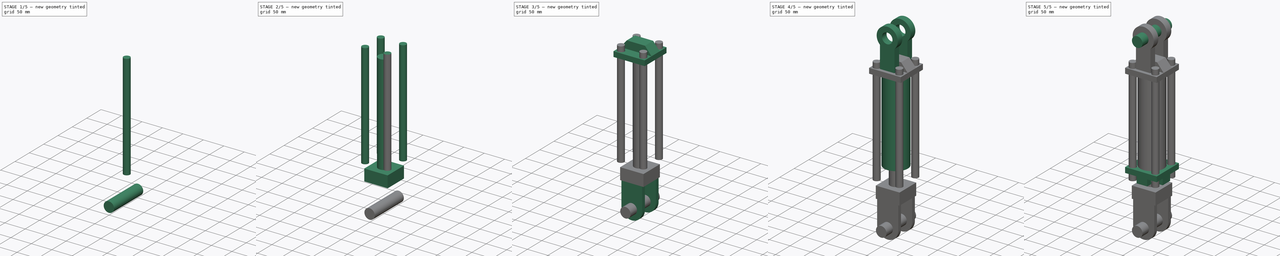
[diagram: build sequence overview — one tinted view per stage of 5, left to right]
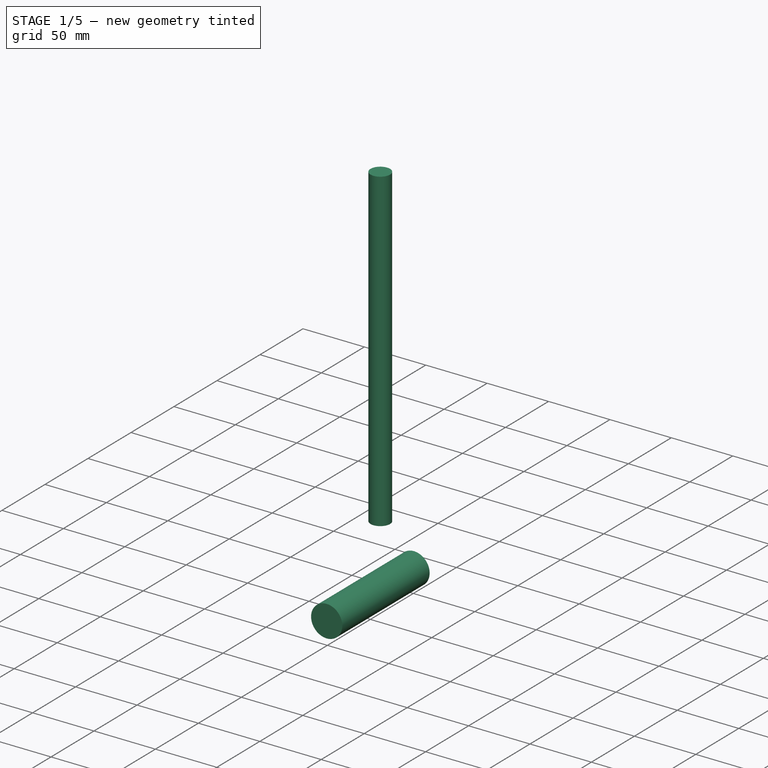
[diagram: stage 1 of 5 — iso view after this stage's code; geometry added in this stage tinted green]
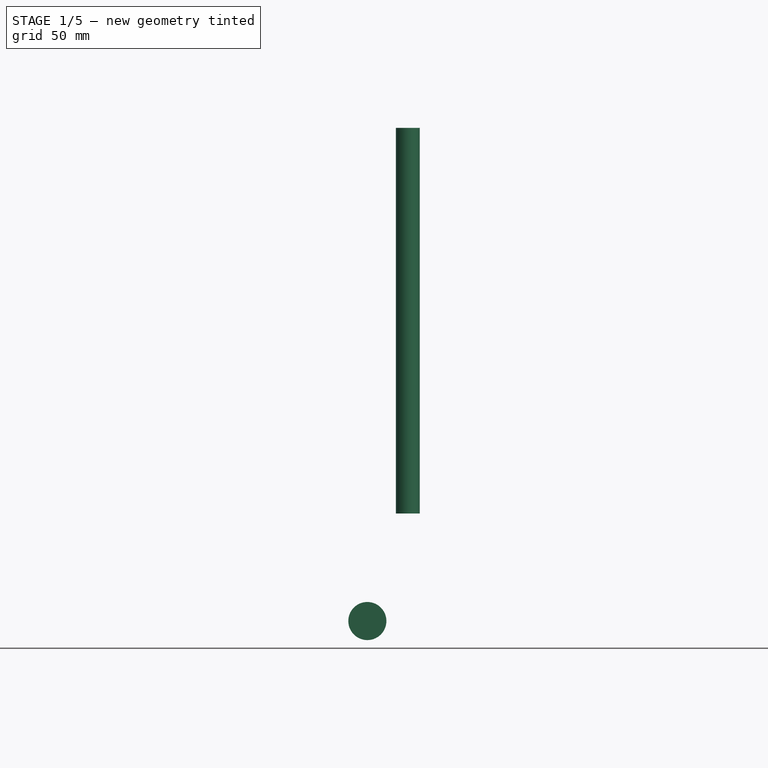
[diagram: stage 1 of 5 — front view after this stage's code; geometry added in this stage tinted green]
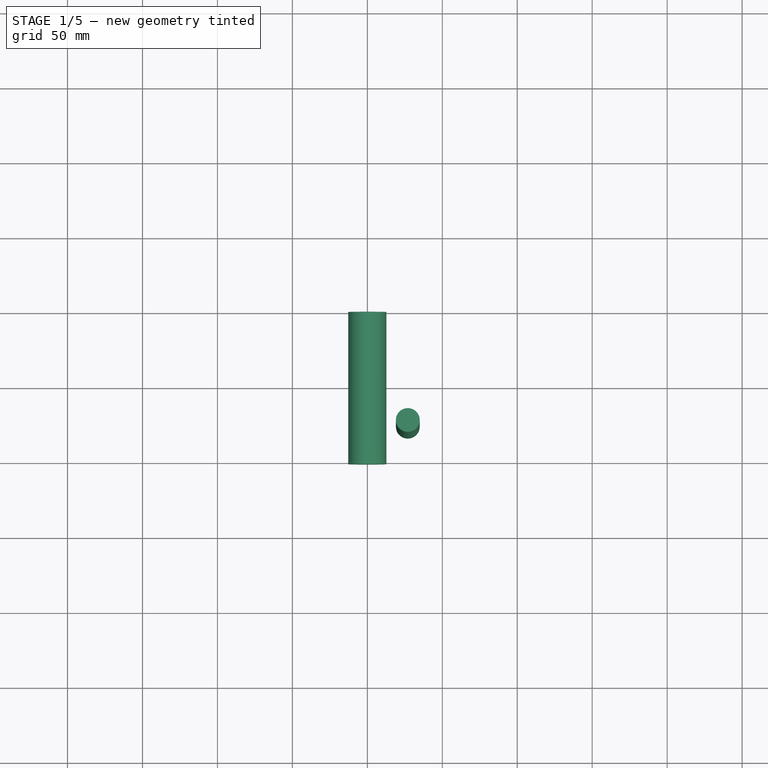
[diagram: stage 1 of 5 — top view after this stage's code; geometry added in this stage tinted green]
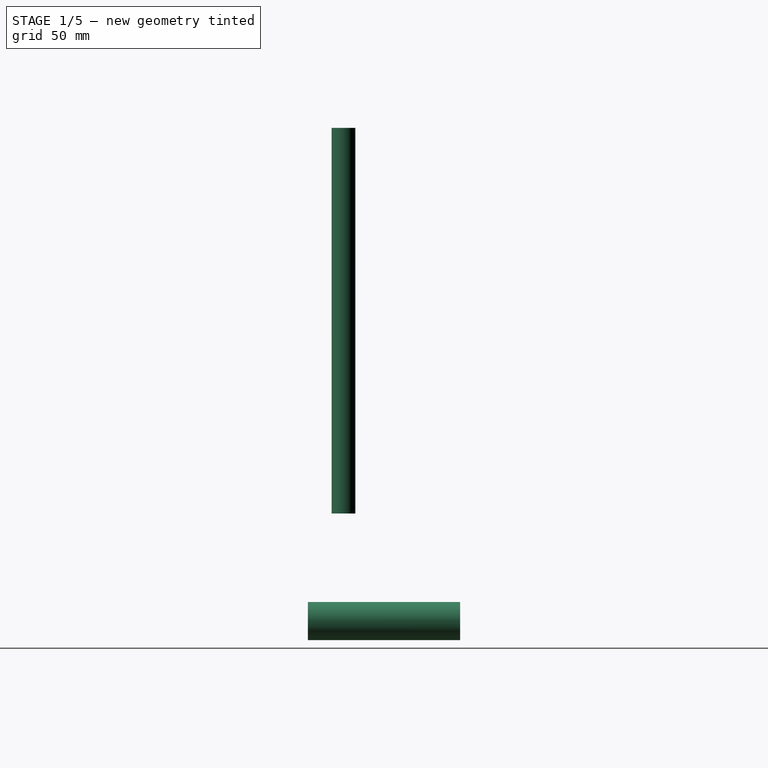
[diagram: stage 1 of 5 — right view after this stage's code; geometry added in this stage tinted green]
FCSTD DOCUMENT  (FreeCAD 0.17R13042 (Git))
Label: cylinder new retracted
License: CreativeCommons Attribution
LicenseURL: http://creativecommons.org/licenses/by/4.0/
objects: Sketcher::SketchObject×10, PartDesign::Pad×10, PartDesign::FeatureBase×8, PartDesign::Body×3, PartDesign::LinearPattern×2, Part::FeaturePython×2, Part::MultiFuse×2, Part::Cylinder×1
note: 48 computed .brp shape members not serialized (recipe doc carries the construction recipe); baked Part::Feature solids carry a one-line shape summary decoded from their .brp

FEATURE [PartDesign::Body] Body001
  Group = -> [Sketch006,Pad006,Sketch007,Pad007,Sketch008,Pad008,LinearPattern001]
  Origin = -> Origin001
  Tip = -> LinearPattern001
FEATURE [Sketcher::SketchObject] Sketch010
  MapMode = 5
  Support = -> [XY_Plane003]
  sketch-geometry (1):
    g0: Circle CenterX=26.9875 CenterY=-26.9875 CenterZ=0 NormalX=0 NormalY=0 NormalZ=1 AngleXU=0 Radius=7.9375
  constraints (3):
    c: Radius(g0) = 7.9375
    c: DistanceX(g0) = 26.9875
    c: DistanceY(g0) = -26.9875
FEATURE [PartDesign::Pad] Pad010
  Length = 257.175
  Length2 = 100.076
  Profile = -> Sketch010
  Reversed = true
  Type = 0
FEATURE [PartDesign::FeatureBase] BaseFeature
  BaseFeature = -> Pad010
FEATURE [PartDesign::FeatureBase] BaseFeature002  label="Unnamed002"
  BaseFeature = -> Pad010
FEATURE [PartDesign::FeatureBase] BaseFeature003  label="Unnamed003"
  BaseFeature = -> Pad010
FEATURE [PartDesign::FeatureBase] BaseFeature004  label="Unnamed004"
  BaseFeature = -> Pad010
FEATURE [Part::Cylinder] Cylinder
  Angle = 360
  AttacherType = Attacher::AttachEngine3D
  Height = 101.6
  Placement = pos=(0,50.8,83.82) rot=(1,0,0;1.5708rad)
  Radius = 12.7
FEATURE [PartDesign::FeatureBase] BaseFeature005  label="Unnamed005"
  BaseFeature = -> Pad010
FEATURE [PartDesign::FeatureBase] BaseFeature006  label="Unnamed006"
  BaseFeature = -> Pad010
FEATURE [PartDesign::FeatureBase] BaseFeature007  label="Unnamed"
  BaseFeature = -> Pad010
FEATURE [Part::FeaturePython] Clone  label="Cylinder001"  # Draft clone (typed FeaturePython)
  AttacherType = Attacher::AttachEngine3D
  Fuse = false
  Objects = -> [Cylinder]
  Placement = pos=(0,50.8,-328.93) rot=(1,0,0;1.5708rad)
  Scale = (1,1,1)
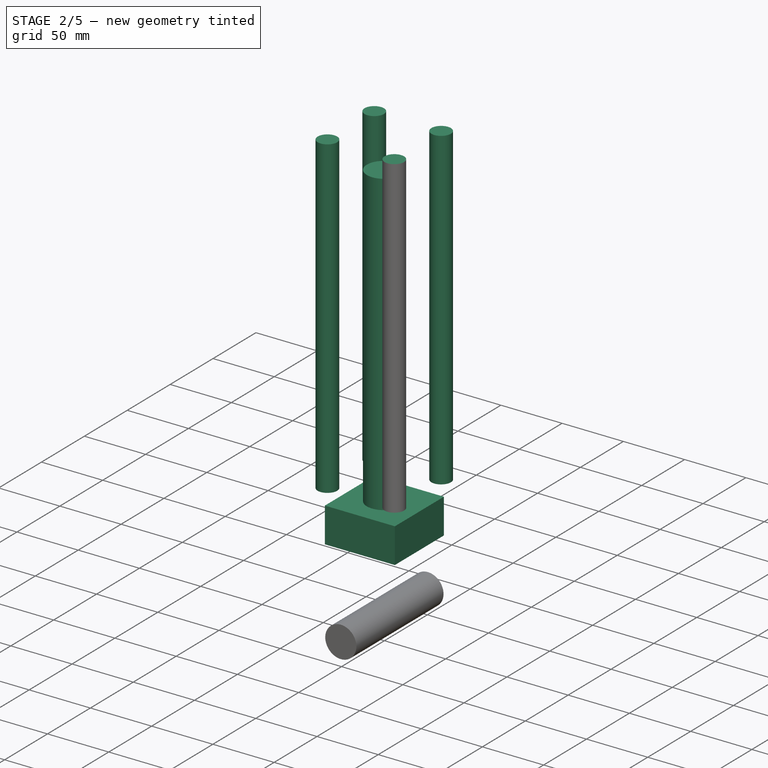
[diagram: stage 2 of 5 — iso view after this stage's code; geometry added in this stage tinted green]
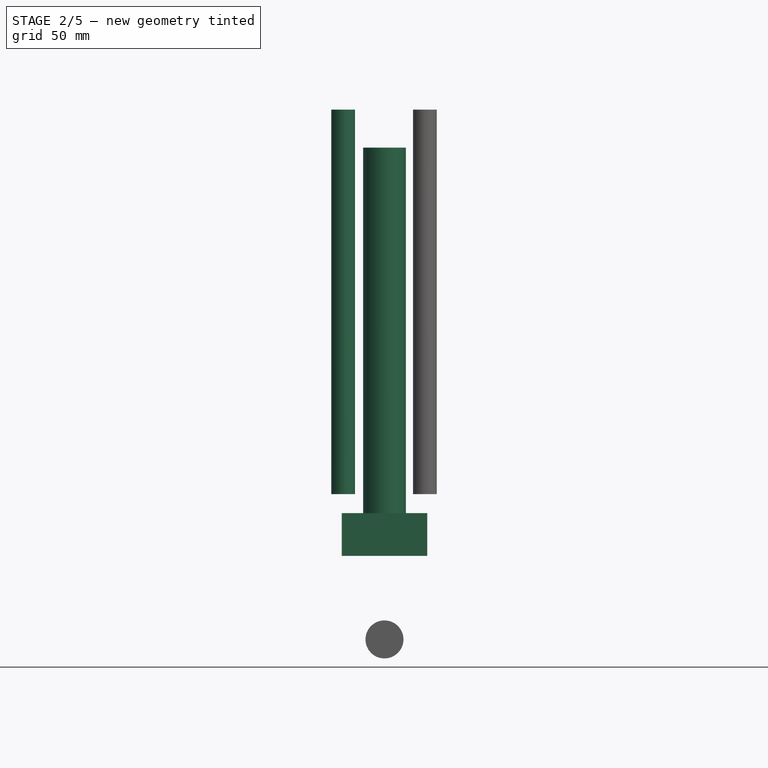
[diagram: stage 2 of 5 — front view after this stage's code; geometry added in this stage tinted green]
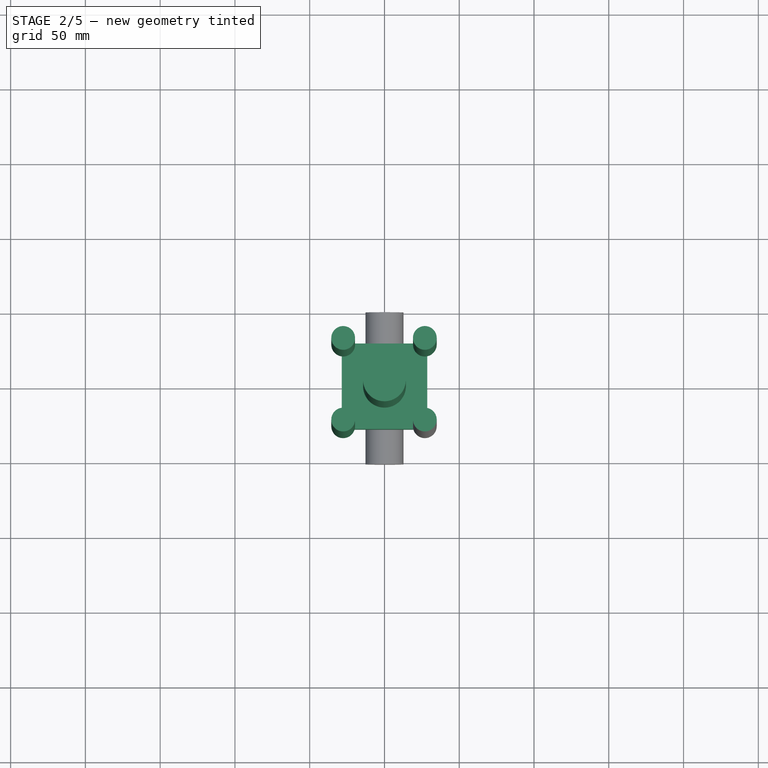
[diagram: stage 2 of 5 — top view after this stage's code; geometry added in this stage tinted green]
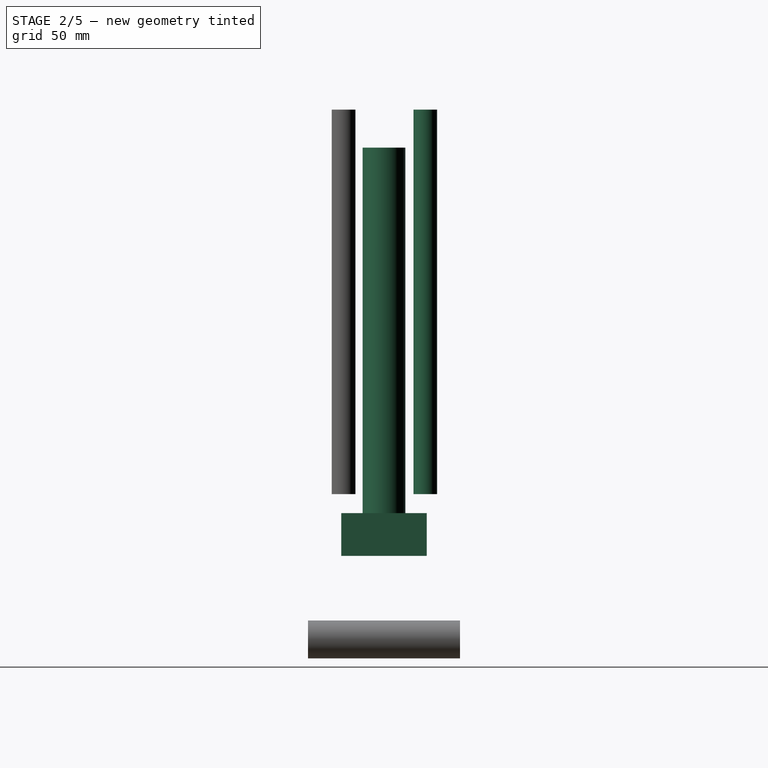
[diagram: stage 2 of 5 — right view after this stage's code; geometry added in this stage tinted green]
FEATURE [PartDesign::Body] Body
  Group = -> [Sketch,Pad,Sketch001,Pad001,Sketch002,Pad002,LinearPattern,Sketch003,Pad003,Sketch004,Pad004,Sketch005,Pad005]
  Origin = -> Origin
  Tip = -> Pad005
FEATURE [Sketcher::SketchObject] Sketch006
  MapMode = 5
  Support = -> [XY_Plane001]
  sketch-geometry (1):
    g0: Circle CenterX=0 CenterY=0 CenterZ=0 NormalX=0 NormalY=0 NormalZ=1 AngleXU=0 Radius=14.2875
  constraints (2):
    c: Coincident(g-1,g0)
    c: Radius(g0) = 14.2875
FEATURE [PartDesign::Pad] Pad006
  Length = 273.05
  Length2 = 100.076
  Profile = -> Sketch006
  Reversed = true
  Type = 0
FEATURE [Sketcher::SketchObject] Sketch007
  MapMode = 5
  Placement = pos=(0,0,-273.05) rot=(1,0,0;3.14159rad)
  Support = -> [Pad006]
  sketch-geometry (4):
    g0: LineSegment StartX=-28.575 StartY=28.575 StartZ=0 EndX=28.575 EndY=28.575 EndZ=0
    g1: LineSegment StartX=28.575 StartY=28.575 StartZ=0 EndX=28.575 EndY=-28.575 EndZ=0
    g2: LineSegment StartX=28.575 StartY=-28.575 StartZ=0 EndX=-28.575 EndY=-28.575 EndZ=0
    g3: LineSegment StartX=-28.575 StartY=-28.575 StartZ=0 EndX=-28.575 EndY=28.575 EndZ=0
  constraints (12):
    c: Coincident(g0,g1)
    c: Coincident(g1,g2)
    c: Coincident(g2,g3)
    c: Coincident(g3,g0)
    c: Horizontal(g0)
    c: Horizontal(g2)
    c: Vertical(g1)
    c: Vertical(g3)
    c: Symmetric(g1,g0,g-1)
    c: Symmetric(g2,g1,g-2)
    c: Equal(g2,g1)
    c: DistanceX(g2,g2) = 57.15
FEATURE [PartDesign::Pad] Pad007
  BaseFeature = -> Pad006
  Length = 28.575
  Length2 = 100.076
  Profile = -> Sketch007
  Reversed = true
  Type = 0
FEATURE [PartDesign::Body] Body002
  BaseFeature = -> Pad010
  Group = -> [BaseFeature]
  Origin = -> Origin002
  Tip = -> BaseFeature
FEATURE [Part::FeaturePython] Array  # Draft array (typed FeaturePython)
  Angle = 360
  ArrayType = 0
  Axis = (0,0,1)
  Base = -> Body002
  Center = (0,0,0)
  Fuse = false
  IntervalAxis = (0,0,0)
  IntervalX = (-54.61,0,0)
  IntervalY = (0,54.61,0)
  IntervalZ = (0,0,0)
  NumberPolar = 1
  NumberX = 2
  NumberY = 2
  NumberZ = 1
  Placement = pos=(0,0,25.4) rot=(0,0,1;0rad)
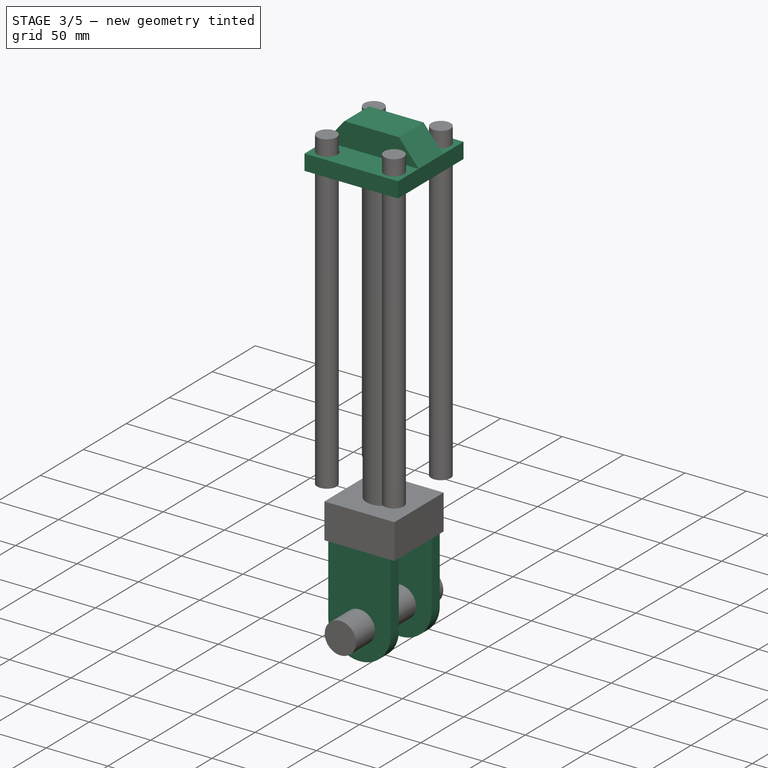
[diagram: stage 3 of 5 — iso view after this stage's code; geometry added in this stage tinted green]
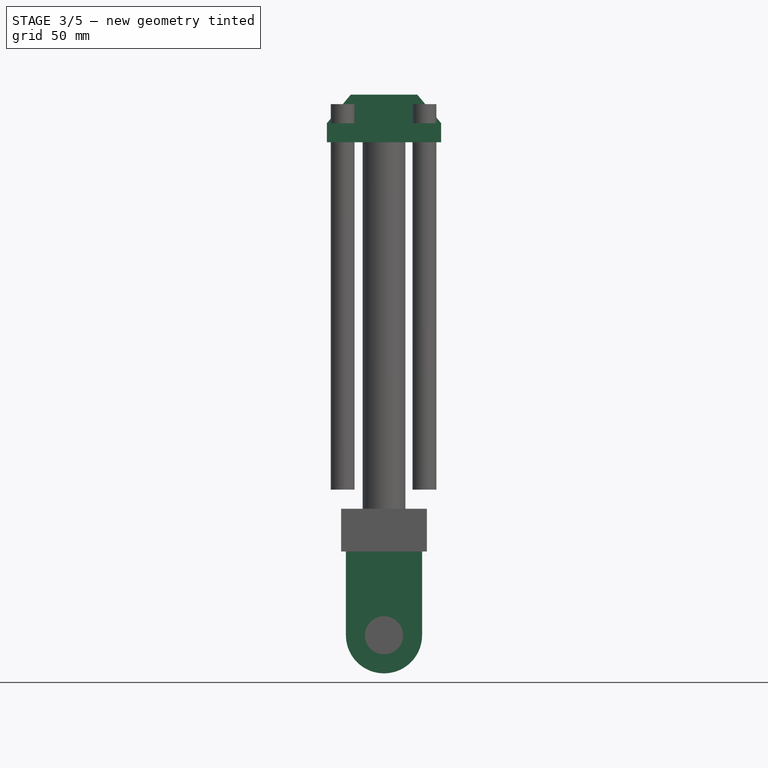
[diagram: stage 3 of 5 — front view after this stage's code; geometry added in this stage tinted green]
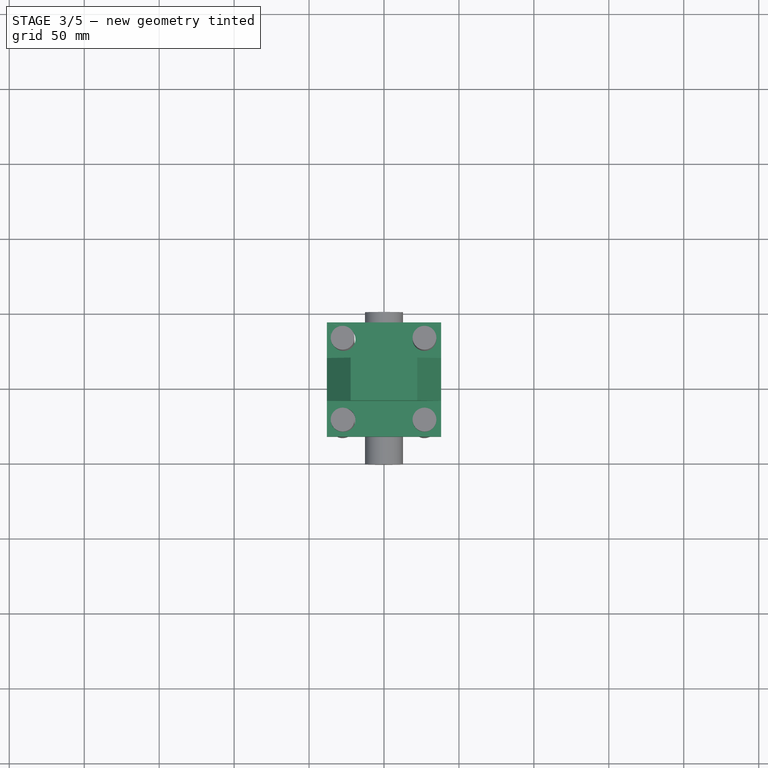
[diagram: stage 3 of 5 — top view after this stage's code; geometry added in this stage tinted green]
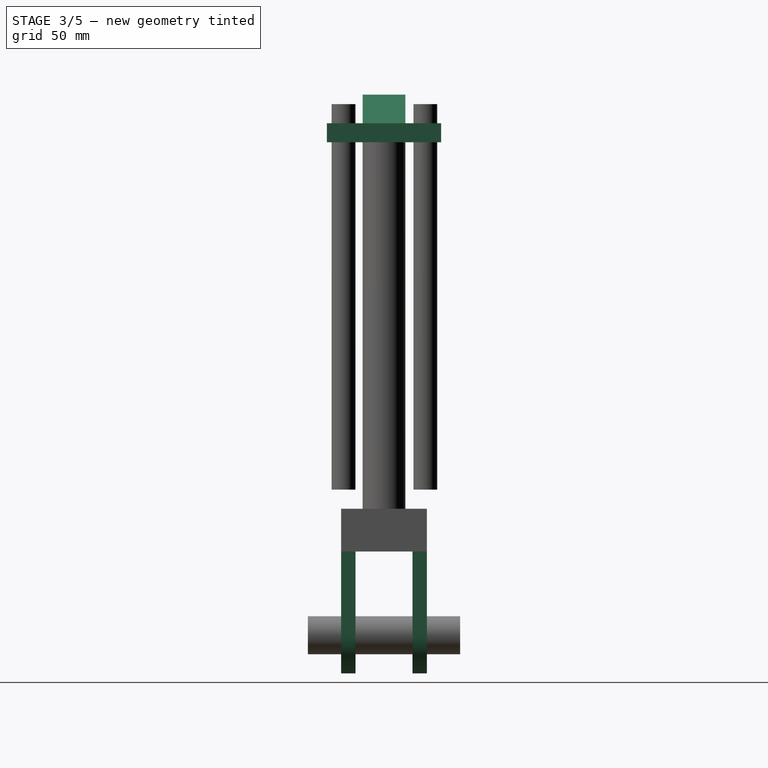
[diagram: stage 3 of 5 — right view after this stage's code; geometry added in this stage tinted green]
FEATURE [Sketcher::SketchObject] Sketch
  MapMode = 5
  Support = -> [XY_Plane]
  sketch-geometry (12):
    g0: LineSegment StartX=-38.1 StartY=38.1 StartZ=0 EndX=38.1 EndY=38.1 EndZ=0
    g1: LineSegment StartX=38.1 StartY=38.1 StartZ=0 EndX=38.1 EndY=-38.1 EndZ=0
    g2: LineSegment StartX=38.1 StartY=-38.1 StartZ=0 EndX=-38.1 EndY=-38.1 EndZ=0
    g3: LineSegment StartX=-38.1 StartY=-38.1 StartZ=0 EndX=-38.1 EndY=38.1 EndZ=0
    g4: LineSegment [constr] StartX=-26.9875 StartY=26.9875 StartZ=0 EndX=26.9875 EndY=26.9875 EndZ=0
    g5: LineSegment [constr] StartX=26.9875 StartY=26.9875 StartZ=0 EndX=26.9875 EndY=-26.9875 EndZ=0
    g6: LineSegment [constr] StartX=26.9875 StartY=-26.9875 StartZ=0 EndX=-26.9875 EndY=-26.9875 EndZ=0
    g7: LineSegment [constr] StartX=-26.9875 StartY=-26.9875 StartZ=0 EndX=-26.9875 EndY=26.9875 EndZ=0
    g8: Circle CenterX=-26.9875 CenterY=26.9875 CenterZ=0 NormalX=0 NormalY=0 NormalZ=1 AngleXU=0 Radius=7.9375
    g9: Circle CenterX=26.9875 CenterY=26.9875 CenterZ=0 NormalX=0 NormalY=0 NormalZ=1 AngleXU=0 Radius=7.9375
    g10: Circle CenterX=-26.9875 CenterY=-26.9875 CenterZ=0 NormalX=0 NormalY=0 NormalZ=1 AngleXU=0 Radius=7.9375
    g11: Circle CenterX=26.9875 CenterY=-26.9875 CenterZ=0 NormalX=0 NormalY=0 NormalZ=1 AngleXU=0 Radius=7.9375
  constraints (32):
    c: Coincident(g0,g1)
    c: Coincident(g1,g2)
    c: Coincident(g2,g3)
    c: Coincident(g3,g0)
    c: Horizontal(g0)
    c: Horizontal(g2)
    c: Vertical(g1)
    c: Vertical(g3)
    c: Equal(g2,g1)
    c: Symmetric(g1,g2,g-2)
    c: DistanceX(g2,g2) = 76.2
    c: Symmetric(g0,g1,g-1)
    c: Coincident(g4,g5)
    c: Coincident(g5,g6)
    c: Coincident(g6,g7)
    c: Coincident(g7,g4)
    c: Horizontal(g4)
    c: Horizontal(g6)
    c: Vertical(g5)
    c: Vertical(g7)
    c: Symmetric(g5,g4,g-1)
    c: Symmetric(g5,g6,g-2)
    c: DistanceX(g6,g6) = 53.975
    c: Equal(g6,g5)
    c: Coincident(g8,g4)
    c: Coincident(g9,g4)
    c: Coincident(g10,g6)
    c: Coincident(g11,g5)
    c: Radius(g11) = 7.9375
    c: Equal(g11,g9)
    c: Equal(g11,g8)
    c: Equal(g11,g10)
FEATURE [Sketcher::SketchObject] Sketch001
  MapMode = 3
  Placement = pos=(0,0,12.7) rot=(1,0,0;1.5708rad)
  sketch-geometry (4):
    g0: LineSegment StartX=-38.1 StartY=0 StartZ=0 EndX=38.1 EndY=0 EndZ=0
    g1: LineSegment StartX=38.1 StartY=0 StartZ=0 EndX=22.225 EndY=19.05 EndZ=0
    g2: LineSegment StartX=22.225 StartY=19.05 StartZ=0 EndX=-22.225 EndY=19.05 EndZ=0
    g3: LineSegment StartX=-22.225 StartY=19.05 StartZ=0 EndX=-38.1 EndY=0 EndZ=0
  constraints (12):
    c: PointOnObject(g0,g-1)
    c: Horizontal(g0)
    c: Coincident(g0,g1)
    c: Coincident(g1,g2)
    c: Coincident(g2,g3)
    c: Coincident(g3,g0)
    c: Horizontal(g2)
    c: Symmetric(g2,g1,g-2)
    c: Symmetric(g0,g0,g-2)
    c: DistanceY(g0,g2) = 19.05
    c: DistanceX(g2,g2) = 44.45
    c: DistanceX(g0,g0) = 76.2
FEATURE [PartDesign::Pad] Pad
  Length = 12.7
  Length2 = 100.076
  Profile = -> Sketch
  Type = 0
FEATURE [PartDesign::Pad] Pad001
  BaseFeature = -> Pad
  Length = 28.575
  Length2 = 100.076
  Midplane = true
  Profile = -> Sketch001
  Type = 0
FEATURE [Sketcher::SketchObject] Sketch008
  MapMode = 5
  Placement = pos=(0,-28.575,0) rot=(1,0,0;1.5708rad)
  Support = -> [Pad007]
  sketch-geometry (5):
    g0: LineSegment StartX=-25.4 StartY=-247.65 StartZ=0 EndX=25.4 EndY=-247.65 EndZ=0
    g1: LineSegment StartX=25.4 StartY=-247.65 StartZ=0 EndX=25.4 EndY=-328.93 EndZ=0
    g2: LineSegment StartX=-25.4 StartY=-328.93 StartZ=0 EndX=-25.4 EndY=-247.65 EndZ=0
    g3: Circle CenterX=0 CenterY=-328.93 CenterZ=0 NormalX=0 NormalY=0 NormalZ=1 AngleXU=0 Radius=12.7
    g4: ArcOfCircle CenterX=0 CenterY=-328.93 CenterZ=0 NormalX=0 NormalY=0 NormalZ=1 AngleXU=0 Radius=25.4 StartAngle=3.14159 EndAngle=6.28319
  constraints (15):
    c: Coincident(g0,g1)
    c: Coincident(g2,g0)
    c: Horizontal(g0)
    c: Vertical(g1)
    c: Vertical(g2)
    c: PointOnObject(g3,g-2)
    c: Radius(g3) = 12.7
    c: Coincident(g4,g3)
    c: Radius(g4) = 25.4
    c: Symmetric(g0,g0,g-2)
    c: DistanceY(g3,g0) = 81.28
    c: Coincident(g4,g2)
    c: Coincident(g4,g1)
    c: DistanceX(g0,g0) = 50.8
    c: DistanceY(g0,g-1) = 247.65
FEATURE [PartDesign::Pad] Pad008
  BaseFeature = -> Pad007
  Length = 9.525
  Length2 = 100.076
  Profile = -> Sketch008
  Reversed = true
  Type = 0
FEATURE [PartDesign::LinearPattern] LinearPattern001
  Direction = -> Sketch008 [N_Axis]
  Length = 47.625
  Occurrences = 2
  Originals = -> [Pad008]
  Reversed = true
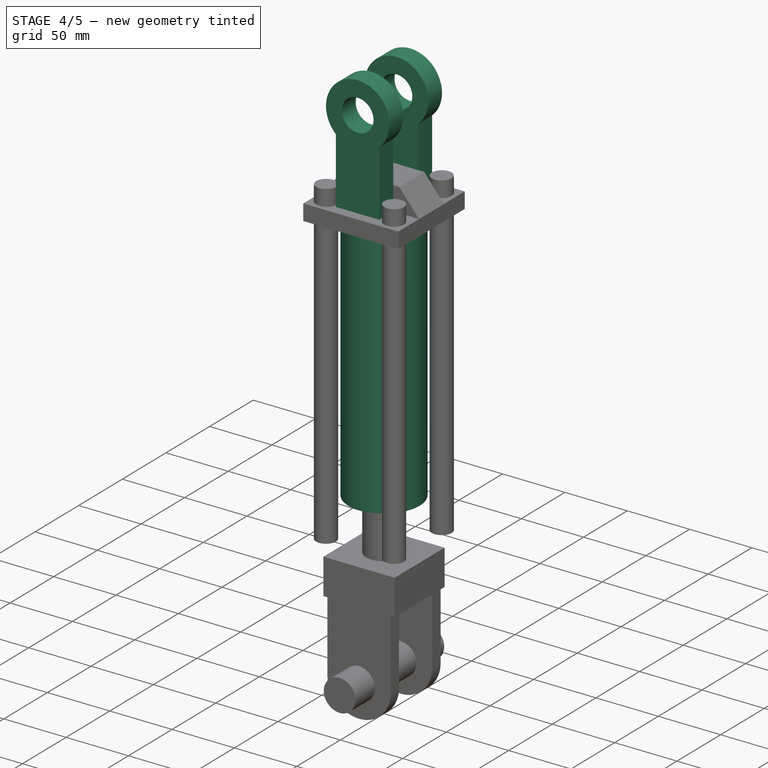
[diagram: stage 4 of 5 — iso view after this stage's code; geometry added in this stage tinted green]
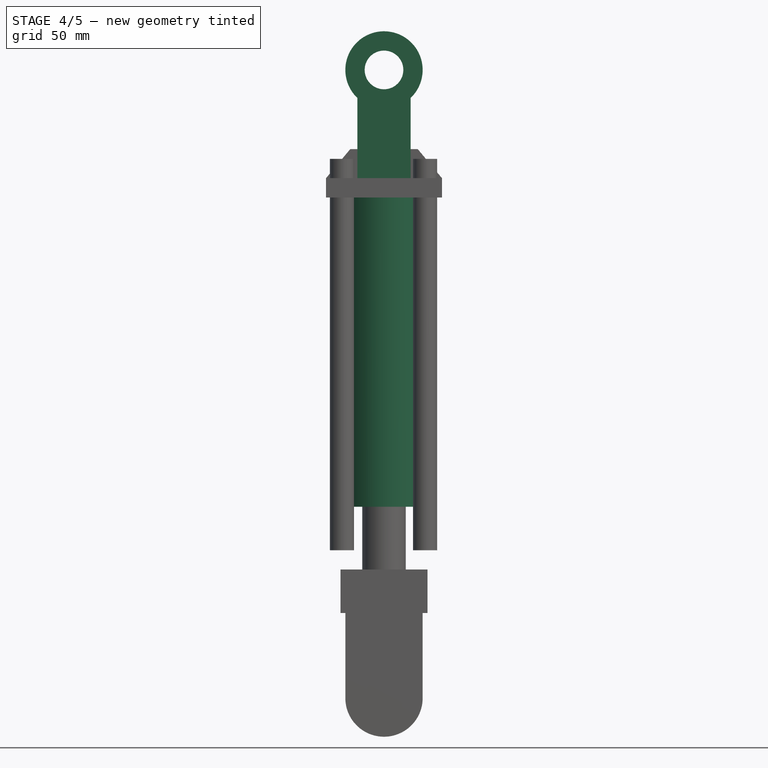
[diagram: stage 4 of 5 — front view after this stage's code; geometry added in this stage tinted green]
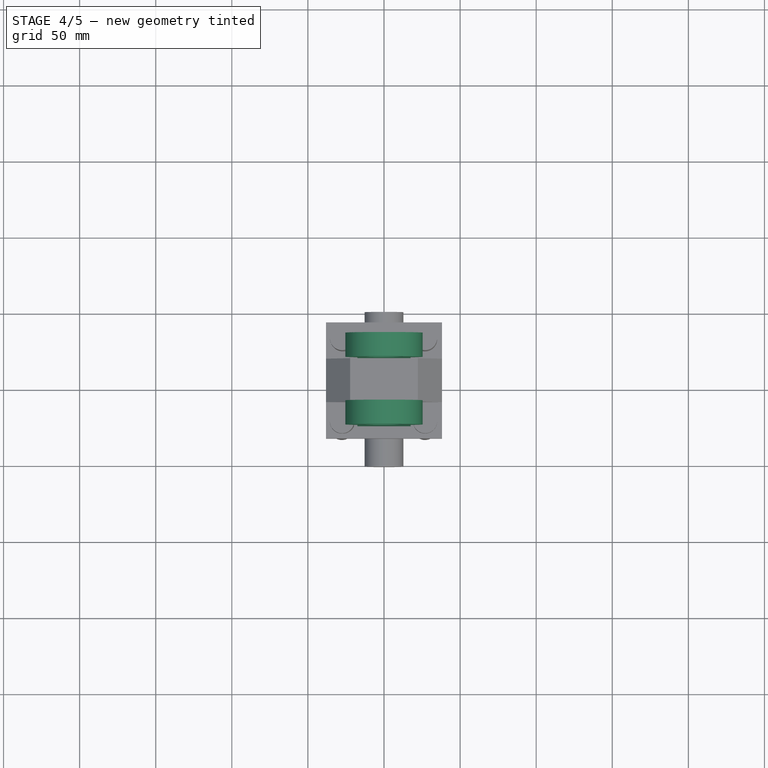
[diagram: stage 4 of 5 — top view after this stage's code; geometry added in this stage tinted green]
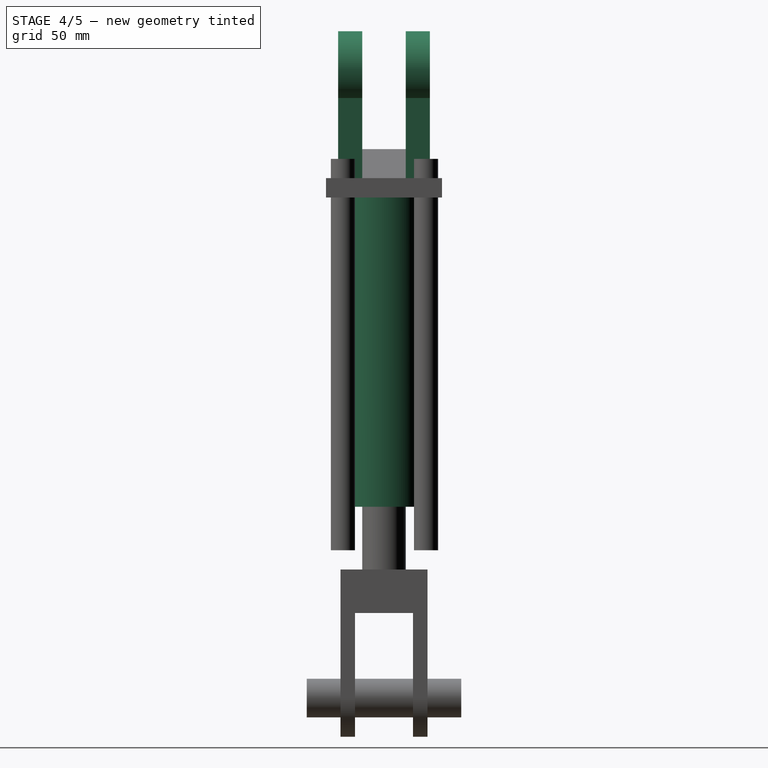
[diagram: stage 4 of 5 — right view after this stage's code; geometry added in this stage tinted green]
FEATURE [Sketcher::SketchObject] Sketch002
  MapMode = 5
  Placement = pos=(0,-14.2875,0) rot=(1,0,0;1.5708rad)
  Support = -> [Pad001]
  sketch-geometry (5):
    g0: LineSegment StartX=-17.4625 StartY=0 StartZ=0 EndX=17.4625 EndY=0 EndZ=0
    g1: LineSegment StartX=17.4625 StartY=0 StartZ=0 EndX=17.4625 EndY=65.3749 EndZ=0
    g2: LineSegment StartX=-17.4625 StartY=65.3749 StartZ=0 EndX=-17.4625 EndY=0 EndZ=0
    g3: Circle CenterX=0 CenterY=83.82 CenterZ=0 NormalX=0 NormalY=0 NormalZ=1 AngleXU=0 Radius=12.7
    g4: ArcOfCircle CenterX=0 CenterY=83.82 CenterZ=0 NormalX=0 NormalY=0 NormalZ=1 AngleXU=0 Radius=25.4 StartAngle=5.47043 EndAngle=10.2375
  constraints (15):
    c: PointOnObject(g0,g-1)
    c: Horizontal(g0)
    c: Coincident(g0,g1)
    c: Vertical(g1)
    c: Coincident(g2,g0)
    c: Vertical(g2)
    c: PointOnObject(g4,g-2)
    c: DistanceX(g0,g0) = 34.925
    c: Symmetric(g0,g0,g-2)
    c: Radius(g3) = 12.7
    c: Radius(g4) = 25.4
    c: Coincident(g2,g4)
    c: Coincident(g1,g4)
    c: Coincident(g3,g4)
    c: DistanceY(g-1,g3) = 83.82
FEATURE [PartDesign::Pad] Pad002
  BaseFeature = -> Pad001
  Length = 15.875
  Length2 = 100.076
  Profile = -> Sketch002
  Type = 0
FEATURE [PartDesign::LinearPattern] LinearPattern
  Direction = -> Sketch002 [N_Axis]
  Length = 44.45
  Occurrences = 2
  Originals = -> [Pad002]
  Reversed = true
FEATURE [Sketcher::SketchObject] Sketch003
  MapMode = 5
  Placement = pos=(0,0,0) rot=(1,0,0;3.14159rad)
  Support = -> [LinearPattern]
  sketch-geometry (2):
    g0: Circle CenterX=0 CenterY=0 CenterZ=0 NormalX=0 NormalY=0 NormalZ=1 AngleXU=0 Radius=28.575
    g1: Circle CenterX=0 CenterY=0 CenterZ=0 NormalX=0 NormalY=0 NormalZ=1 AngleXU=0 Radius=25.4
  constraints (4):
    c: Coincident(g0,g-1)
    c: Radius(g0) = 28.575
    c: Coincident(g1,g-1)
    c: Radius(g1) = 25.4
FEATURE [PartDesign::Pad] Pad003
  BaseFeature = -> LinearPattern
  Length = 203.2
  Length2 = 100.076
  Profile = -> Sketch003
  Type = 0
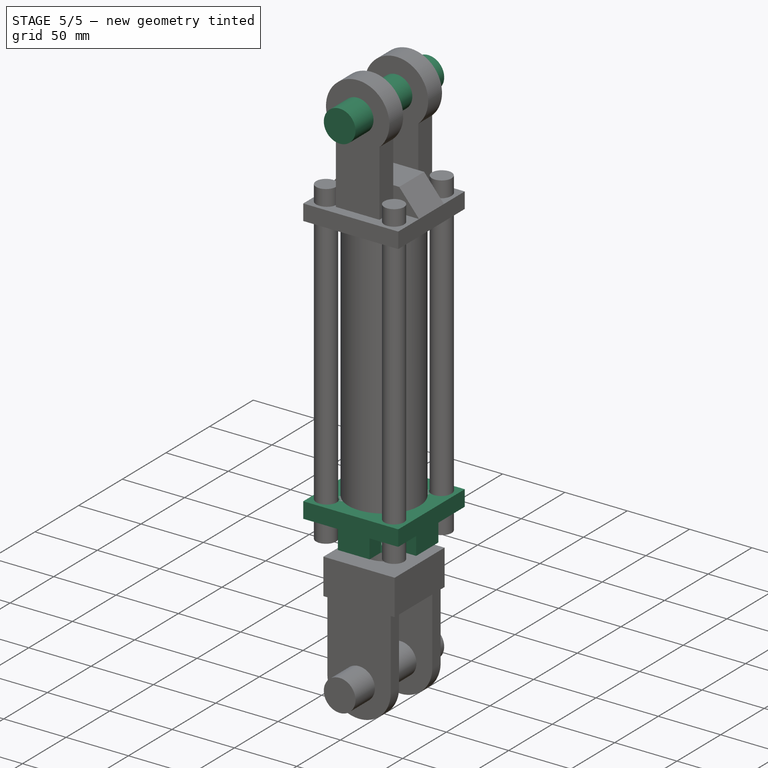
[diagram: stage 5 of 5 — iso view after this stage's code; geometry added in this stage tinted green]
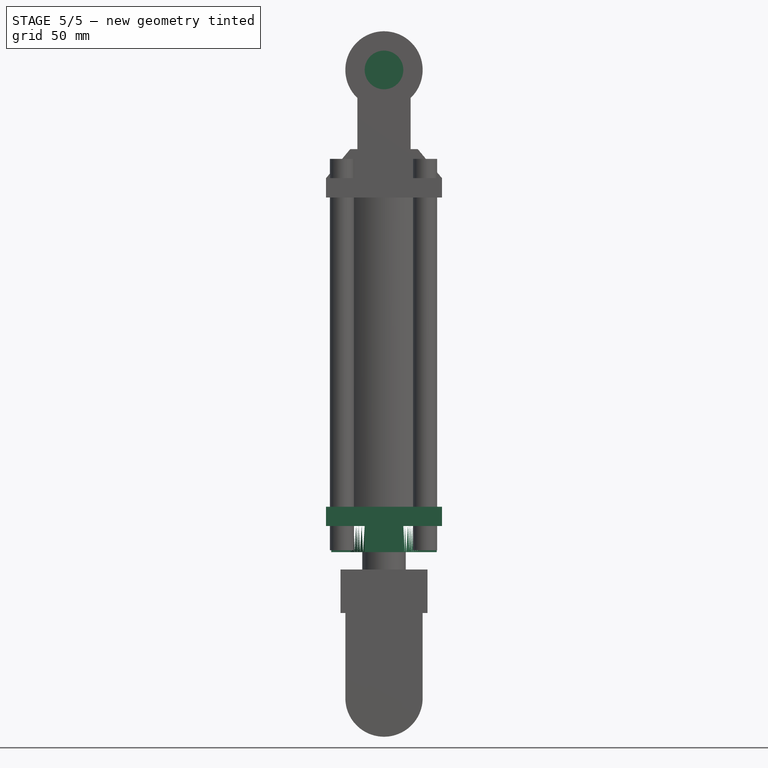
[diagram: stage 5 of 5 — front view after this stage's code; geometry added in this stage tinted green]
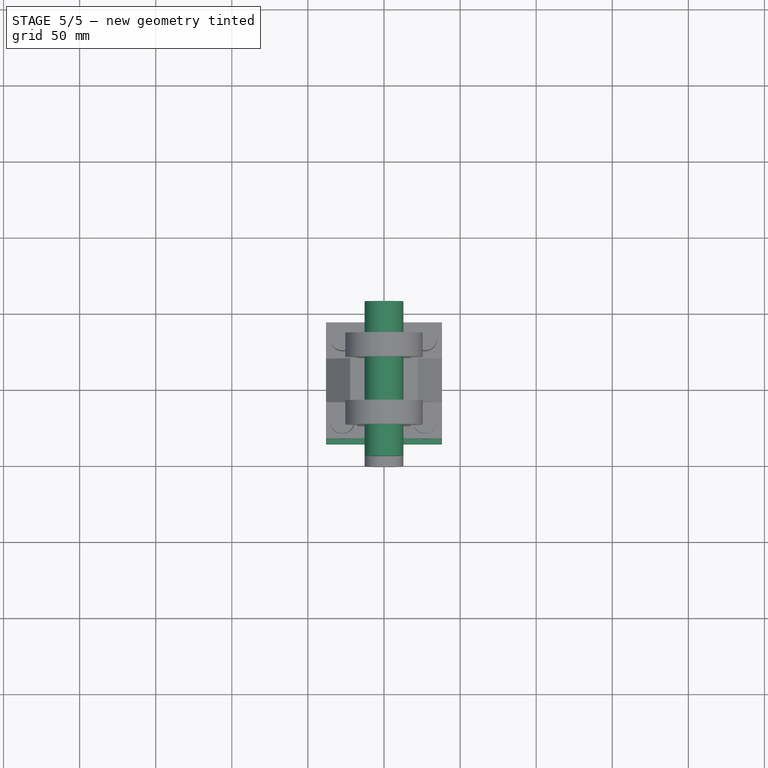
[diagram: stage 5 of 5 — top view after this stage's code; geometry added in this stage tinted green]
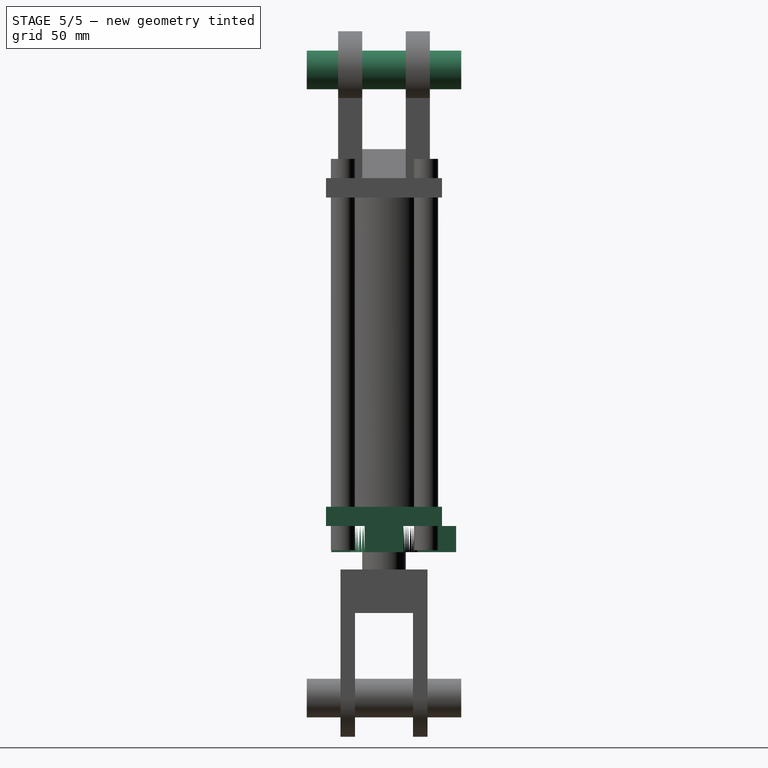
[diagram: stage 5 of 5 — right view after this stage's code; geometry added in this stage tinted green]
FEATURE [Sketcher::SketchObject] Sketch004
  MapMode = 5
  Placement = pos=(0,0,-203.2) rot=(1,0,0;3.14159rad)
  Support = -> [Pad003]
  sketch-geometry (13):
    g0: LineSegment StartX=-38.1 StartY=38.1 StartZ=0 EndX=38.1 EndY=38.1 EndZ=0
    g1: LineSegment StartX=38.1 StartY=38.1 StartZ=0 EndX=38.1 EndY=-38.1 EndZ=0
    g2: LineSegment StartX=38.1 StartY=-38.1 StartZ=0 EndX=-38.1 EndY=-38.1 EndZ=0
    g3: LineSegment StartX=-38.1 StartY=-38.1 StartZ=0 EndX=-38.1 EndY=38.1 EndZ=0
    g4: LineSegment [constr] StartX=-26.9875 StartY=26.9875 StartZ=0 EndX=26.9875 EndY=26.9875 EndZ=0
    g5: LineSegment [constr] StartX=26.9875 StartY=26.9875 StartZ=0 EndX=26.9875 EndY=-26.9875 EndZ=0
    g6: LineSegment [constr] StartX=26.9875 StartY=-26.9875 StartZ=0 EndX=-26.9875 EndY=-26.9875 EndZ=0
    g7: LineSegment [constr] StartX=-26.9875 StartY=-26.9875 StartZ=0 EndX=-26.9875 EndY=26.9875 EndZ=0
    g8: Circle CenterX=-26.9875 CenterY=26.9875 CenterZ=0 NormalX=0 NormalY=0 NormalZ=1 AngleXU=0 Radius=7.9375
    g9: Circle CenterX=26.9875 CenterY=26.9875 CenterZ=0 NormalX=0 NormalY=0 NormalZ=1 AngleXU=0 Radius=7.9375
    g10: Circle CenterX=-26.9875 CenterY=-26.9875 CenterZ=0 NormalX=0 NormalY=0 NormalZ=1 AngleXU=0 Radius=7.9375
    g11: Circle CenterX=26.9875 CenterY=-26.9875 CenterZ=0 NormalX=0 NormalY=0 NormalZ=1 AngleXU=0 Radius=7.9375
    g12: Circle CenterX=0 CenterY=0 CenterZ=0 NormalX=0 NormalY=0 NormalZ=1 AngleXU=0 Radius=25.4
  constraints (34):
    c: Coincident(g0,g1)
    c: Coincident(g1,g2)
    c: Coincident(g2,g3)
    c: Coincident(g3,g0)
    c: Horizontal(g0)
    c: Horizontal(g2)
    c: Vertical(g1)
    c: Vertical(g3)
    c: Equal(g2,g1)
    c: Symmetric(g1,g2,g-2)
    c: DistanceX(g2,g2) = 76.2
    c: Symmetric(g0,g1,g-1)
    c: Coincident(g4,g5)
    c: Coincident(g5,g6)
    c: Coincident(g6,g7)
    c: Coincident(g7,g4)
    c: Horizontal(g4)
    c: Horizontal(g6)
    c: Vertical(g5)
    c: Vertical(g7)
    c: Symmetric(g5,g4,g-1)
    c: Symmetric(g5,g6,g-2)
    c: DistanceX(g6,g6) = 53.975
    c: Equal(g6,g5)
    c: Coincident(g8,g4)
    c: Coincident(g9,g4)
    c: Coincident(g10,g6)
    c: Coincident(g11,g5)
    c: Radius(g11) = 7.9375
    c: Equal(g11,g9)
    c: Equal(g11,g8)
    c: Equal(g11,g10)
    c: Coincident(g12,g-1)
    c: Radius(g12) = 25.4
FEATURE [PartDesign::Pad] Pad004
  BaseFeature = -> Pad003
  Length = 12.7
  Length2 = 100.076
  Profile = -> Sketch004
  Type = 0
FEATURE [Sketcher::SketchObject] Sketch005
  MapMode = 5
  Placement = pos=(0,0,-215.9) rot=(1,0,0;3.14159rad)
  Support = -> [Pad004]
  sketch-geometry (17):
    g0: ArcOfCircle CenterX=0 CenterY=0 CenterZ=0 NormalX=0 NormalY=0 NormalZ=1 AngleXU=0 Radius=25.4 StartAngle=0.523599 EndAngle=1.0472
    g1: Circle CenterX=0 CenterY=0 CenterZ=0 NormalX=0 NormalY=0 NormalZ=1 AngleXU=0 Radius=14.2875
    g2: LineSegment StartX=-12.7 StartY=34.697 StartZ=0 EndX=12.7 EndY=34.697 EndZ=0
    g3: LineSegment StartX=12.7 StartY=34.697 StartZ=0 EndX=12.7 EndY=21.997 EndZ=0
    g4: LineSegment StartX=-12.7 StartY=21.997 StartZ=0 EndX=-12.7 EndY=34.697 EndZ=0
    g5: LineSegment StartX=34.697 StartY=12.7 StartZ=0 EndX=21.997 EndY=12.7 EndZ=0
    g6: LineSegment StartX=21.997 StartY=-12.7 StartZ=0 EndX=34.697 EndY=-12.7 EndZ=0
    g7: LineSegment StartX=34.697 StartY=-12.7 StartZ=0 EndX=34.697 EndY=12.7 EndZ=0
    g8: LineSegment StartX=-34.697 StartY=12.7 StartZ=0 EndX=-21.997 EndY=12.7 EndZ=0
    g9: LineSegment StartX=-21.997 StartY=-12.7 StartZ=0 EndX=-34.697 EndY=-12.7 EndZ=0
    g10: LineSegment StartX=-34.697 StartY=-12.7 StartZ=0 EndX=-34.697 EndY=12.7 EndZ=0
    g11: LineSegment StartX=-12.7 StartY=-47.397 StartZ=0 EndX=12.7 EndY=-47.397 EndZ=0
    g12: LineSegment StartX=12.7 StartY=-47.397 StartZ=0 EndX=12.7 EndY=-21.997 EndZ=0
    g13: LineSegment StartX=-12.7 StartY=-21.997 StartZ=0 EndX=-12.7 EndY=-47.397 EndZ=0
    g14: ArcOfCircle CenterX=0 CenterY=0 CenterZ=0 NormalX=0 NormalY=0 NormalZ=1 AngleXU=0 Radius=25.4 StartAngle=3.66519 EndAngle=4.18879
    g15: ArcOfCircle CenterX=0 CenterY=0 CenterZ=0 NormalX=0 NormalY=0 NormalZ=1 AngleXU=0 Radius=25.4 StartAngle=5.23599 EndAngle=5.75959
    g16: ArcOfCircle CenterX=0 CenterY=0 CenterZ=0 NormalX=0 NormalY=0 NormalZ=1 AngleXU=0 Radius=25.4 StartAngle=2.0944 EndAngle=2.61799
  constraints (46):
    c: Coincident(g0,g-1)
    c: Coincident(g1,g-1)
    c: Radius(g0) = 25.4
    c: Radius(g1) = 14.2875
    c: Coincident(g2,g3)
    c: Coincident(g4,g2)
    c: Horizontal(g2)
    c: Vertical(g3)
    c: Vertical(g4)
    c: Coincident(g6,g7)
    c: Coincident(g7,g5)
    c: Horizontal(g5)
    c: Horizontal(g6)
    c: Vertical(g7)
    c: Coincident(g9,g10)
    c: Coincident(g10,g8)
    c: Horizontal(g8)
    c: Horizontal(g9)
    c: Vertical(g10)
    c: Coincident(g11,g12)
    c: Coincident(g13,g11)
    c: Horizontal(g11)
    c: Vertical(g12)
    c: Vertical(g13)
    c: PointOnObject(g12,g0)
    c: Equal(g11,g7)
    c: Equal(g7,g2)
    c: Equal(g2,g10)
    c: DistanceX(g11,g11) = 25.4
    c: Symmetric(g11,g11,g-2)
    c: PointOnObject(g6,g0)
    c: PointOnObject(g9,g0)
    c: Equal(g5,g3)
    c: Equal(g3,g8)
    c: DistanceX(g6,g6) = 12.7
    c: DistanceY(g12,g12) = 25.4
    c: PointOnObject(g0,g5)
    c: Equal(g0,g14)
    c: PointOnObject(g16,g8)
    c: Coincident(g0,g14)
    c: Equal(g14,g15)
    c: PointOnObject(g15,g12)
    c: Coincident(g14,g15)
    c: Equal(g0,g16)
    c: Coincident(g0,g3)
    c: Coincident(g0,g16)
FEATURE [PartDesign::Pad] Pad005
  BaseFeature = -> Pad004
  Length = 17.145
  Length2 = 100.076
  Profile = -> Sketch005
  Type = 0
FEATURE [PartDesign::FeatureBase] BaseFeature001  label="Unnamed001"
  BaseFeature = -> Pad010
FEATURE [Part::MultiFuse] Fusion
  Shapes = -> [Body,Body001,Array]
FEATURE [Part::MultiFuse] Fusion001
  Shapes = -> [Cylinder,Fusion,Clone]
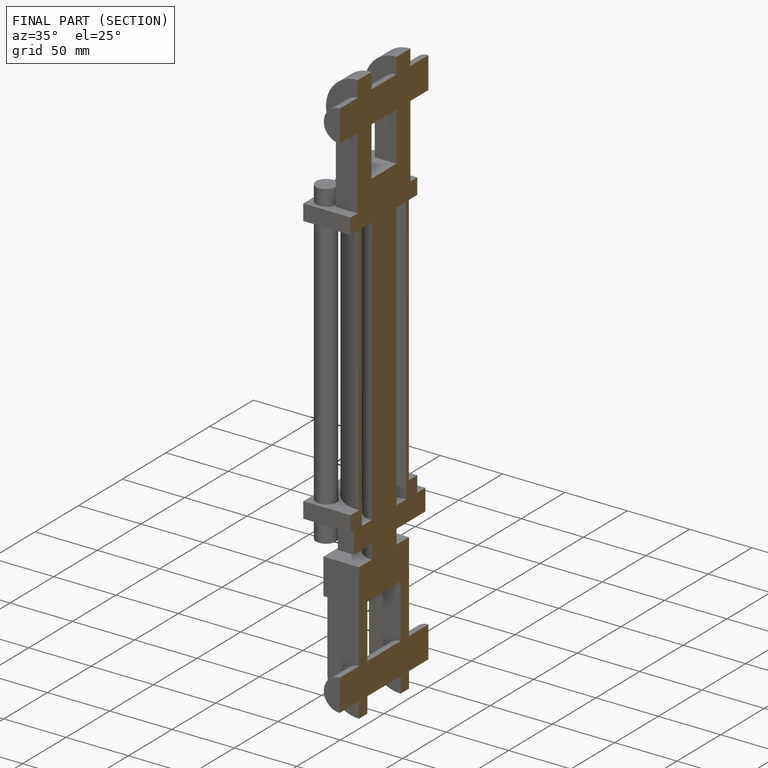
[diagram: finished part — half-section view (interior)]
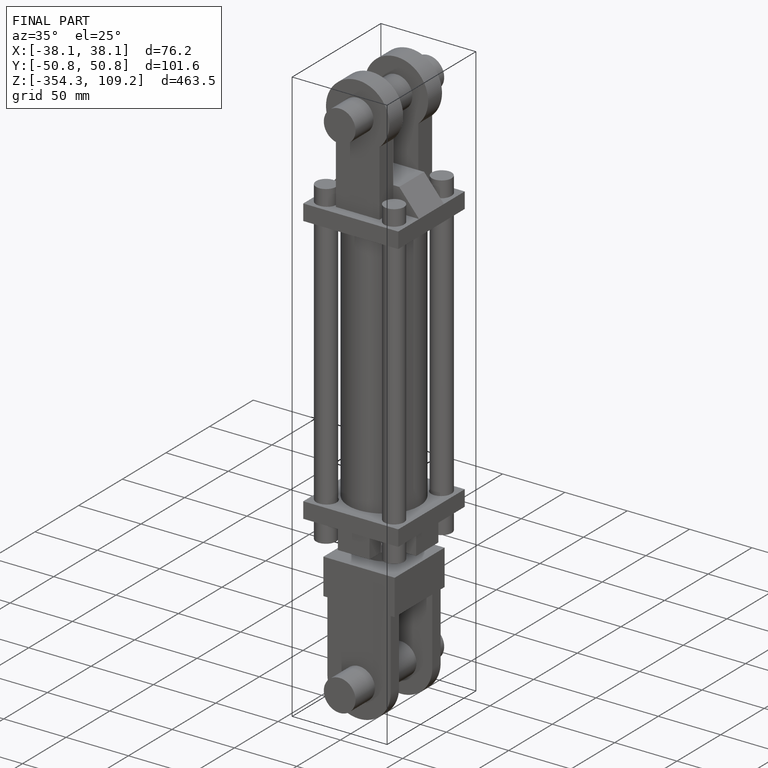
[diagram: finished part — iso view with bounding-box wireframe]
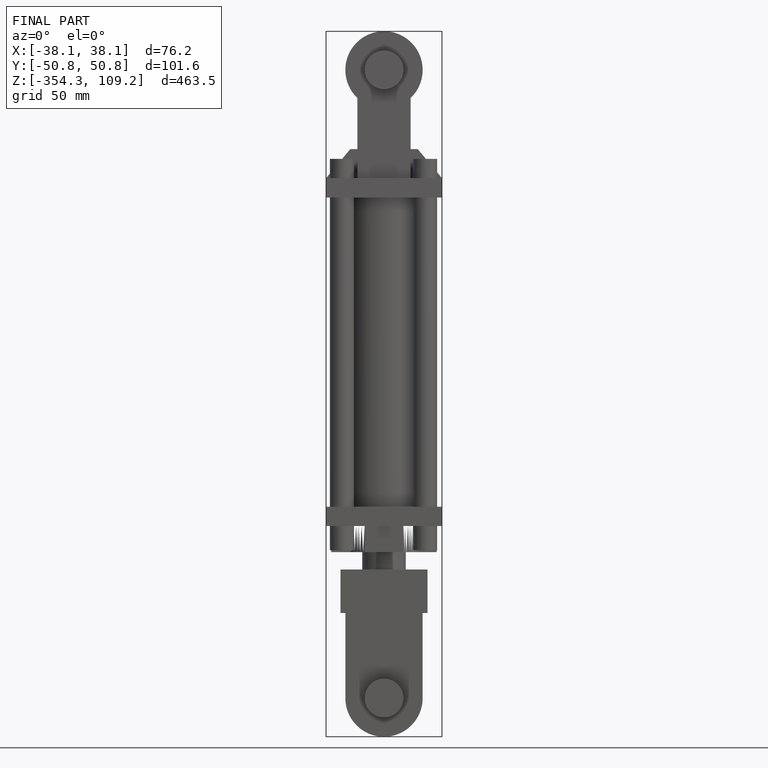
[diagram: finished part — front view with bounding-box wireframe]
